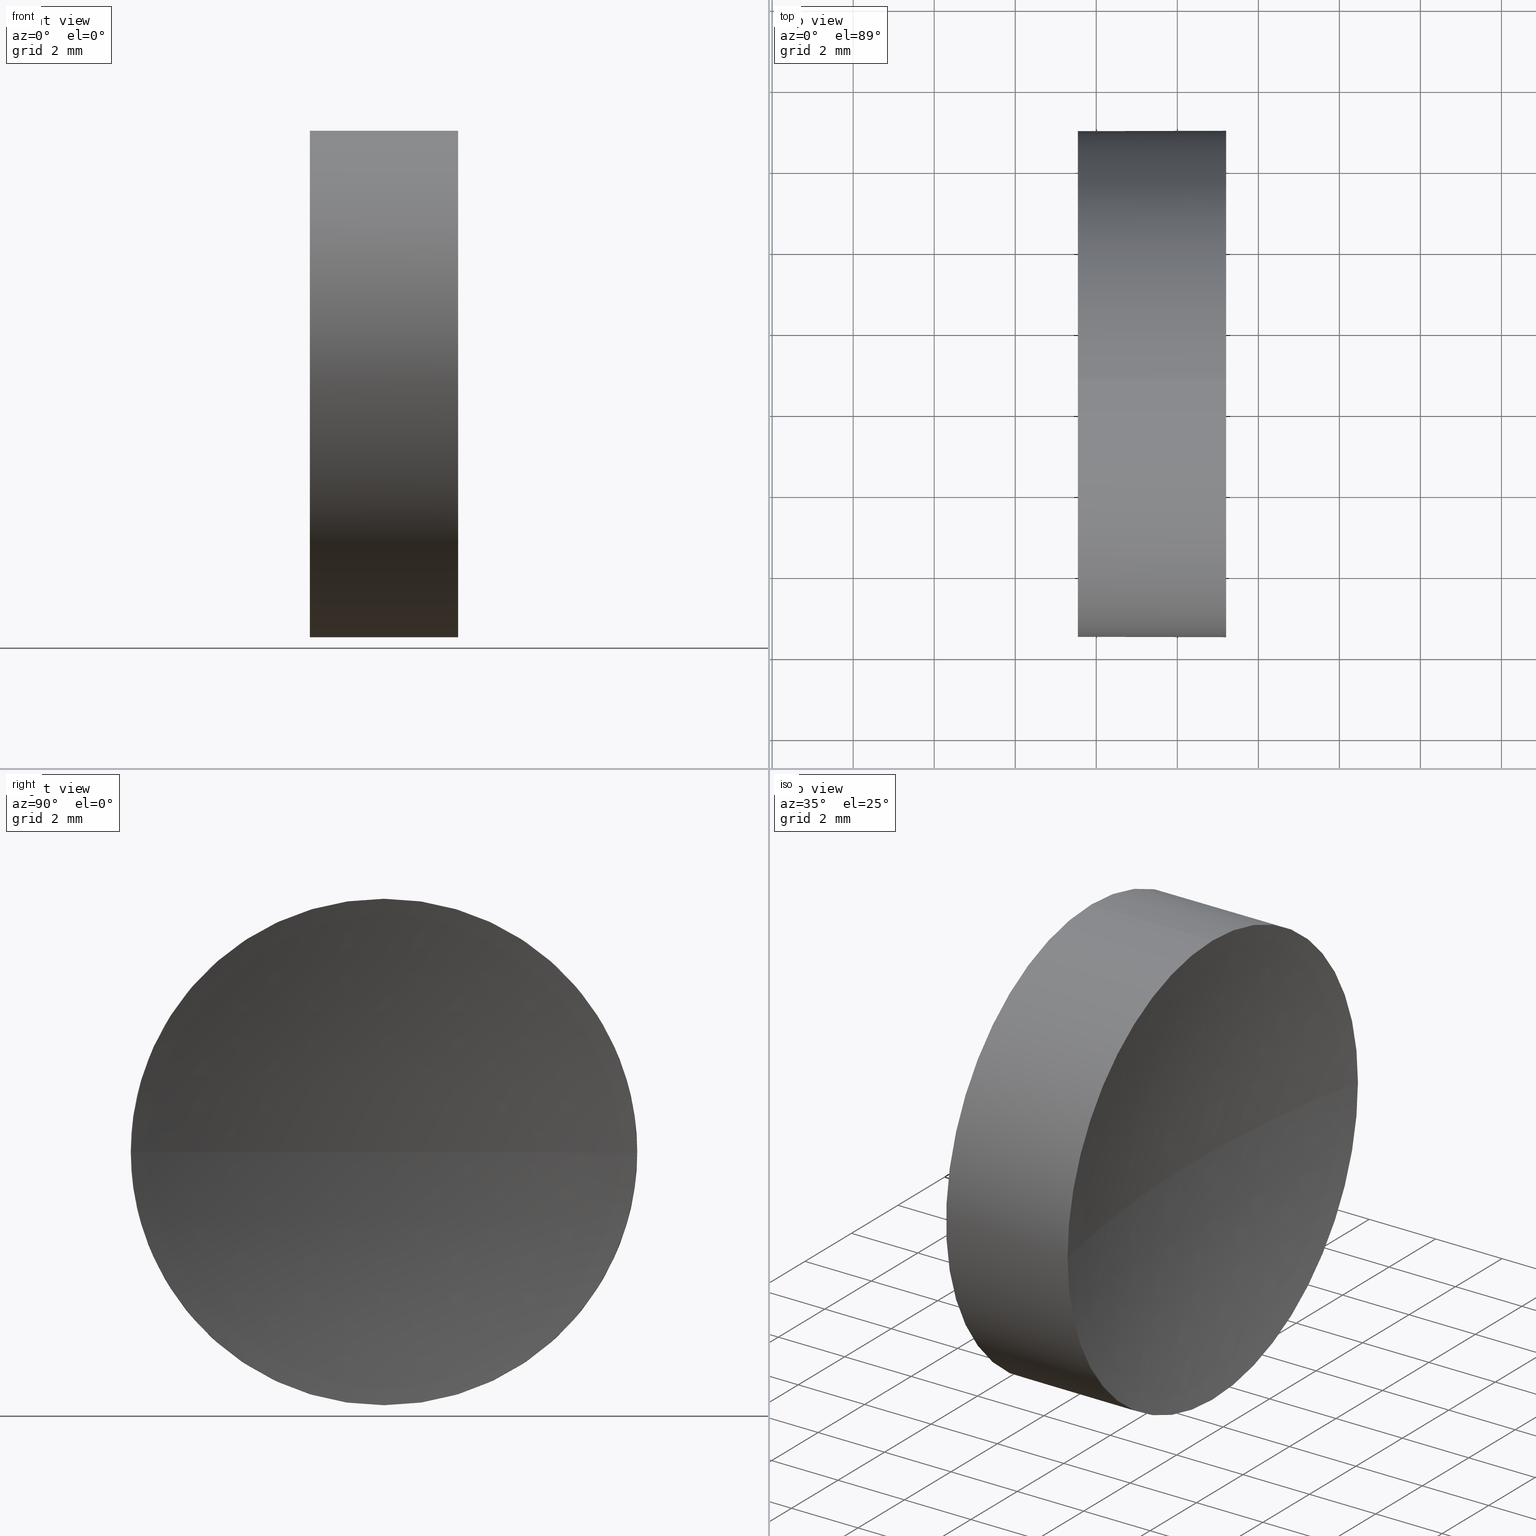
[diagram: canonical four-view strip — front | top / right | iso, engineering-drawing reading convention]
A machine part, canonical four-view strip (front | top / right | iso — engineering-drawing reading convention). The complete STEP part file that produces these views, byte-faithful:
ISO-10303-21;
HEADER;
FILE_DESCRIPTION (( 'STEP AP214' ),
    '1' );
FILE_NAME ('270002.STEP',
    '2019-07-22T01:41:52',
    ( '' ),
    ( '' ),
    'SwSTEP 2.0',
    'SolidWorks 2016',
    '' );
FILE_SCHEMA (( 'AUTOMOTIVE_DESIGN' ));
ENDSEC;

DATA;
#1 = CIRCLE ( 'NONE', #150, 30.00000000000000000 ) ;
#2 = AXIS2_PLACEMENT_3D ( 'NONE', #149, #123, #80 ) ;
#3 = APPLICATION_CONTEXT ( 'automotive_design' ) ;
#4 = EDGE_LOOP ( 'NONE', ( #72, #160, #152, #30 ) ) ;
#5 =( LENGTH_UNIT ( ) NAMED_UNIT ( * ) SI_UNIT ( .MILLI., .METRE. ) );
#6 = SHAPE_DEFINITION_REPRESENTATION ( #36, #90 ) ;
#7 = DIRECTION ( 'NONE',  ( 0.0000000000000000000, 0.0000000000000000000, 1.000000000000000000 ) ) ;
#8 = FILL_AREA_STYLE_COLOUR ( '', #119 ) ;
#9 = EDGE_LOOP ( 'NONE', ( #41, #116, #111, #100 ) ) ;
#10 = CARTESIAN_POINT ( 'NONE',  ( 61.20459128169575500, 34.68901056168621700, 0.0000000000000000000 ) ) ;
#11 = CARTESIAN_POINT ( 'NONE',  ( 54.49257150108255100, 34.68901056168621700, 0.0000000000000000000 ) ) ;
#12 = CARTESIAN_POINT ( 'NONE',  ( 57.54632776745975800, 34.68901056168621700, 6.249999999999998200 ) ) ;
#13 = DIRECTION ( 'NONE',  ( 0.0000000000000000000, 0.0000000000000000000, 1.000000000000000000 ) ) ;
#14 = SURFACE_SIDE_STYLE ('',( #117 ) ) ;
#15 = CARTESIAN_POINT ( 'NONE',  ( 57.54632776745975800, 34.68901056168621700, -6.249999999999998200 ) ) ;
#16 = AXIS2_PLACEMENT_3D ( 'NONE', #11, #135, #76 ) ;
#17 = VERTEX_POINT ( 'NONE', #120 ) ;
#18 = UNCERTAINTY_MEASURE_WITH_UNIT (LENGTH_MEASURE( 1.000000000000000100E-005 ), #5, 'distance_accuracy_value', 'NONE');
#19 = EDGE_CURVE ( 'NONE', #172, #46, #179, .T. ) ;
#20 = CIRCLE ( 'NONE', #141, 6.250000000000005300 ) ;
#21 =( LENGTH_UNIT ( ) NAMED_UNIT ( * ) SI_UNIT ( .MILLI., .METRE. ) );
#22 = DIRECTION ( 'NONE',  ( 1.000000000000000000, 0.0000000000000000000, 0.0000000000000000000 ) ) ;
#23 = VECTOR ( 'NONE', #29, 1000.000000000000000 ) ;
#24 = EDGE_CURVE ( 'NONE', #17, #136, #64, .T. ) ;
#25 = STYLED_ITEM ( 'NONE', ( #83 ), #99 ) ;
#26 = ORIENTED_EDGE ( 'NONE', *, *, #71, .T. ) ;
#27 =( NAMED_UNIT ( * ) PLANE_ANGLE_UNIT ( ) SI_UNIT ( $, .RADIAN. ) );
#28 = FACE_OUTER_BOUND ( 'NONE', #9, .T. ) ;
#29 = DIRECTION ( 'NONE',  ( -1.000000000000000000, -0.0000000000000000000, -0.0000000000000000000 ) ) ;
#30 = ORIENTED_EDGE ( 'NONE', *, *, #186, .F. ) ;
#31 = AXIS2_PLACEMENT_3D ( 'NONE', #40, #55, #42 ) ;
#32 = UNCERTAINTY_MEASURE_WITH_UNIT (LENGTH_MEASURE( 1.000000000000000100E-005 ), #21, 'distance_accuracy_value', 'NONE');
#33 = CLOSED_SHELL ( 'NONE', ( #124, #163, #47, #61, #153 ) ) ;
#34 = PRESENTATION_STYLE_ASSIGNMENT (( #157 ) ) ;
#35 = AXIS2_PLACEMENT_3D ( 'NONE', #159, #77, #173 ) ;
#36 = PRODUCT_DEFINITION_SHAPE ( 'NONE', 'NONE',  #97 ) ;
#37 = ORIENTED_EDGE ( 'NONE', *, *, #24, .T. ) ;
#38 = CIRCLE ( 'NONE', #109, 6.249999999999998200 ) ;
#39 = CARTESIAN_POINT ( 'NONE',  ( 61.20459128169575500, 34.68901056168621700, 6.250000000000004400 ) ) ;
#40 = CARTESIAN_POINT ( 'NONE',  ( 57.54632776745975800, 34.68901056168621700, 0.0000000000000000000 ) ) ;
#41 = ORIENTED_EDGE ( 'NONE', *, *, #19, .F. ) ;
#42 = DIRECTION ( 'NONE',  ( 0.0000000000000000000, 0.0000000000000000000, 1.000000000000000000 ) ) ;
#43 = CARTESIAN_POINT ( 'NONE',  ( 61.20459128169575500, 34.68901056168621700, 0.0000000000000000000 ) ) ;
#44 = CARTESIAN_POINT ( 'NONE',  ( 57.54632776745975800, 34.68901056168621700, 0.0000000000000000000 ) ) ;
#45 = CARTESIAN_POINT ( 'NONE',  ( 57.54632776745975800, 34.68901056168621700, 0.0000000000000000000 ) ) ;
#46 = VERTEX_POINT ( 'NONE', #89 ) ;
#47 = ADVANCED_FACE ( 'NONE', ( #28 ), #95, .F. ) ;
#48 = MECHANICAL_DESIGN_GEOMETRIC_PRESENTATION_REPRESENTATION (  '', ( #25 ), #130 ) ;
#49 = EDGE_LOOP ( 'NONE', ( #37, #166, #70, #81, #69 ) ) ;
#50 = CARTESIAN_POINT ( 'NONE',  ( 0.0000000000000000000, 0.0000000000000000000, 0.0000000000000000000 ) ) ;
#51 = SPHERICAL_SURFACE ( 'NONE', #2, 30.00000000000000000 ) ;
#52 = APPLICATION_CONTEXT ( 'automotive_design' ) ;
#53 = ORIENTED_EDGE ( 'NONE', *, *, #168, .T. ) ;
#54 = PRODUCT_DEFINITION_CONTEXT ( 'detailed design', #3, 'design' ) ;
#55 = DIRECTION ( 'NONE',  ( -1.000000000000000000, -0.0000000000000000000, -0.0000000000000000000 ) ) ;
#56 = FILL_AREA_STYLE_COLOUR ( '', #78 ) ;
#57 = DIRECTION ( 'NONE',  ( 0.0000000000000000000, 0.0000000000000000000, -1.000000000000000000 ) ) ;
#58 = AXIS2_PLACEMENT_3D ( 'NONE', #169, #102, #13 ) ;
#59 = ORIENTED_EDGE ( 'NONE', *, *, #139, .F. ) ;
#60 = FACE_OUTER_BOUND ( 'NONE', #146, .T. ) ;
#61 = ADVANCED_FACE ( 'NONE', ( #60 ), #85, .T. ) ;
#62 = CYLINDRICAL_SURFACE ( 'NONE', #35, 6.250000000000001800 ) ;
#63 =( NAMED_UNIT ( * ) PLANE_ANGLE_UNIT ( ) SI_UNIT ( $, .RADIAN. ) );
#64 = CIRCLE ( 'NONE', #58, 6.250000000000005300 ) ;
#65 = AXIS2_PLACEMENT_3D ( 'NONE', #73, #112, #127 ) ;
#66 = DIRECTION ( 'NONE',  ( -1.000000000000000000, -0.0000000000000000000, -0.0000000000000000000 ) ) ;
#67 = SURFACE_STYLE_USAGE ( .BOTH. , #14 ) ;
#68 = ORIENTED_EDGE ( 'NONE', *, *, #122, .T. ) ;
#69 = ORIENTED_EDGE ( 'NONE', *, *, #186, .T. ) ;
#70 = ORIENTED_EDGE ( 'NONE', *, *, #122, .F. ) ;
#71 = EDGE_CURVE ( 'NONE', #136, #172, #20, .T. ) ;
#72 = ORIENTED_EDGE ( 'NONE', *, *, #94, .F. ) ;
#73 = CARTESIAN_POINT ( 'NONE',  ( 61.20459128169575500, 34.68901056168621700, 0.0000000000000000000 ) ) ;
#74 = DIRECTION ( 'NONE',  ( 0.0000000000000000000, 1.000000000000000000, 1.224646799147352700E-016 ) ) ;
#75 = ORIENTED_EDGE ( 'NONE', *, *, #180, .F. ) ;
#76 = DIRECTION ( 'NONE',  ( 0.0000000000000000000, 0.0000000000000000000, 1.000000000000000000 ) ) ;
#77 = DIRECTION ( 'NONE',  ( -1.000000000000000000, -0.0000000000000000000, -0.0000000000000000000 ) ) ;
#78 = COLOUR_RGB ( '',1.000000000000000000, 1.000000000000000000, 1.000000000000000000 ) ;
#79 = CARTESIAN_POINT ( 'NONE',  ( 54.49257150108255100, 34.68901056168621700, -6.250000000000001800 ) ) ;
#80 = DIRECTION ( 'NONE',  ( 0.0000000000000000000, 1.000000000000000000, 0.0000000000000000000 ) ) ;
#81 = ORIENTED_EDGE ( 'NONE', *, *, #168, .F. ) ;
#82 = AXIS2_PLACEMENT_3D ( 'NONE', #43, #66, #158 ) ;
#83 = PRESENTATION_STYLE_ASSIGNMENT (( #67 ) ) ;
#84 = FACE_OUTER_BOUND ( 'NONE', #4, .T. ) ;
#85 = CYLINDRICAL_SURFACE ( 'NONE', #16, 6.250000000000001800 ) ;
#86 = UNCERTAINTY_MEASURE_WITH_UNIT (LENGTH_MEASURE( 1.000000000000000100E-005 ), #145, 'distance_accuracy_value', 'NONE');
#87 = SURFACE_SIDE_STYLE ('',( #174 ) ) ;
#88 = AXIS2_PLACEMENT_3D ( 'NONE', #44, #138, #57 ) ;
#89 = CARTESIAN_POINT ( 'NONE',  ( 60.54632776745950900, 34.68901056168621000, 0.0000000000000000000 ) ) ;
#90 = ADVANCED_BREP_SHAPE_REPRESENTATION ( '270002', ( #99, #177 ), #114 ) ;
#91 = DIRECTION ( 'NONE',  ( 0.0000000000000000000, 0.0000000000000000000, 1.000000000000000000 ) ) ;
#92 = PRODUCT ( '270002', '270002', '', ( #113 ) ) ;
#93 = DIRECTION ( 'NONE',  ( -1.000000000000000000, -0.0000000000000000000, -0.0000000000000000000 ) ) ;
#94 = EDGE_CURVE ( 'NONE', #172, #106, #131, .T. ) ;
#95 = SPHERICAL_SURFACE ( 'NONE', #170, 30.00000000000000000 ) ;
#96 = PRODUCT_RELATED_PRODUCT_CATEGORY ( 'part', '', ( #92 ) ) ;
#97 = PRODUCT_DEFINITION ( 'δ֪', '', #132, #54 ) ;
#98 = DIRECTION ( 'NONE',  ( 0.0000000000000000000, 0.0000000000000000000, 1.000000000000000000 ) ) ;
#99 = MANIFOLD_SOLID_BREP ( '��ת1', #33 ) ;
#100 = ORIENTED_EDGE ( 'NONE', *, *, #185, .T. ) ;
#101 = DIRECTION ( 'NONE',  ( 0.0000000000000000000, 1.224646799147353200E-016, -1.000000000000000000 ) ) ;
#102 = DIRECTION ( 'NONE',  ( -1.000000000000000000, -0.0000000000000000000, -0.0000000000000000000 ) ) ;
#103 = DIRECTION ( 'NONE',  ( -1.000000000000000000, -0.0000000000000000000, -0.0000000000000000000 ) ) ;
#104 = DIRECTION ( 'NONE',  ( 0.0000000000000000000, 0.0000000000000000000, 1.000000000000000000 ) ) ;
#105 = PRESENTATION_LAYER_ASSIGNMENT (  '', '', ( #140 ) ) ;
#106 = VERTEX_POINT ( 'NONE', #39 ) ;
#107 = ORIENTED_EDGE ( 'NONE', *, *, #180, .T. ) ;
#108 = CIRCLE ( 'NONE', #31, 6.249999999999998200 ) ;
#109 = AXIS2_PLACEMENT_3D ( 'NONE', #45, #93, #104 ) ;
#110 = FACE_OUTER_BOUND ( 'NONE', #182, .T. ) ;
#111 = ORIENTED_EDGE ( 'NONE', *, *, #24, .F. ) ;
#112 = DIRECTION ( 'NONE',  ( -1.000000000000000000, -0.0000000000000000000, -0.0000000000000000000 ) ) ;
#113 = PRODUCT_CONTEXT ( 'NONE', #52, 'mechanical' ) ;
#114 =( GEOMETRIC_REPRESENTATION_CONTEXT ( 3 ) GLOBAL_UNCERTAINTY_ASSIGNED_CONTEXT ( ( #32 ) ) GLOBAL_UNIT_ASSIGNED_CONTEXT ( ( #21, #63, #142 ) ) REPRESENTATION_CONTEXT ( 'NONE', 'WORKASPACE' ) );
#115 = CARTESIAN_POINT ( 'NONE',  ( 90.54632776745950200, 34.68901056168621000, 0.0000000000000000000 ) ) ;
#116 = ORIENTED_EDGE ( 'NONE', *, *, #71, .F. ) ;
#117 = SURFACE_STYLE_FILL_AREA ( #147 ) ;
#118 = DIRECTION ( 'NONE',  ( 0.0000000000000000000, 1.000000000000000000, 0.0000000000000000000 ) ) ;
#119 = COLOUR_RGB ( '',1.000000000000000000, 1.000000000000000000, 1.000000000000000000 ) ;
#120 = CARTESIAN_POINT ( 'NONE',  ( 61.20459128169575500, 40.93901056168621000, 0.0000000000000000000 ) ) ;
#121 = DIRECTION ( 'NONE',  ( -1.000000000000000000, -0.0000000000000000000, -0.0000000000000000000 ) ) ;
#122 = EDGE_CURVE ( 'NONE', #161, #178, #108, .T. ) ;
#123 = DIRECTION ( 'NONE',  ( 0.0000000000000000000, 0.0000000000000000000, -1.000000000000000000 ) ) ;
#124 = ADVANCED_FACE ( 'NONE', ( #155 ), #62, .T. ) ;
#125 = AXIS2_PLACEMENT_3D ( 'NONE', #133, #101, #74 ) ;
#126 =( NAMED_UNIT ( * ) SI_UNIT ( $, .STERADIAN. ) SOLID_ANGLE_UNIT ( ) );
#127 = DIRECTION ( 'NONE',  ( 0.0000000000000000000, 0.0000000000000000000, 1.000000000000000000 ) ) ;
#128 = LINE ( 'NONE', #79, #23 ) ;
#129 = DIRECTION ( 'NONE',  ( 1.000000000000000000, 0.0000000000000000000, 0.0000000000000000000 ) ) ;
#130 =( GEOMETRIC_REPRESENTATION_CONTEXT ( 3 ) GLOBAL_UNCERTAINTY_ASSIGNED_CONTEXT ( ( #86 ) ) GLOBAL_UNIT_ASSIGNED_CONTEXT ( ( #145, #27, #137 ) ) REPRESENTATION_CONTEXT ( 'NONE', 'WORKASPACE' ) );
#131 = CIRCLE ( 'NONE', #82, 6.250000000000005300 ) ;
#132 = PRODUCT_DEFINITION_FORMATION_WITH_SPECIFIED_SOURCE ( '�κ�', '', #92, .NOT_KNOWN. ) ;
#133 = CARTESIAN_POINT ( 'NONE',  ( 90.54632776745950200, 34.68901056168621000, 0.0000000000000000000 ) ) ;
#134 = CARTESIAN_POINT ( 'NONE',  ( 61.20459128169575500, 34.68901056168621700, -6.250000000000004400 ) ) ;
#135 = DIRECTION ( 'NONE',  ( -1.000000000000000000, -0.0000000000000000000, -0.0000000000000000000 ) ) ;
#136 = VERTEX_POINT ( 'NONE', #134 ) ;
#137 =( NAMED_UNIT ( * ) SI_UNIT ( $, .STERADIAN. ) SOLID_ANGLE_UNIT ( ) );
#138 = DIRECTION ( 'NONE',  ( 1.000000000000000000, 0.0000000000000000000, 0.0000000000000000000 ) ) ;
#139 = EDGE_CURVE ( 'NONE', #136, #178, #128, .T. ) ;
#140 = STYLED_ITEM ( 'NONE', ( #34 ), #90 ) ;
#141 = AXIS2_PLACEMENT_3D ( 'NONE', #10, #121, #91 ) ;
#142 =( NAMED_UNIT ( * ) SI_UNIT ( $, .STERADIAN. ) SOLID_ANGLE_UNIT ( ) );
#143 = APPLICATION_PROTOCOL_DEFINITION ( 'draft international standard', 'automotive_design', 1998, #52 ) ;
#144 = MECHANICAL_DESIGN_GEOMETRIC_PRESENTATION_REPRESENTATION (  '', ( #140 ), #156 ) ;
#145 =( LENGTH_UNIT ( ) NAMED_UNIT ( * ) SI_UNIT ( .MILLI., .METRE. ) );
#146 = EDGE_LOOP ( 'NONE', ( #59, #26, #183, #53, #75 ) ) ;
#147 = FILL_AREA_STYLE ('',( #56 ) ) ;
#148 = CARTESIAN_POINT ( 'NONE',  ( 90.54632776745950200, 34.68901056168621000, 0.0000000000000000000 ) ) ;
#149 = CARTESIAN_POINT ( 'NONE',  ( 90.54632776745950200, 34.68901056168621000, 0.0000000000000000000 ) ) ;
#150 = AXIS2_PLACEMENT_3D ( 'NONE', #148, #98, #129 ) ;
#151 = CARTESIAN_POINT ( 'NONE',  ( 54.49257150108255100, 34.68901056168621700, 6.250000000000001800 ) ) ;
#152 = ORIENTED_EDGE ( 'NONE', *, *, #185, .F. ) ;
#153 = ADVANCED_FACE ( 'NONE', ( #110 ), #175, .F. ) ;
#154 = LINE ( 'NONE', #151, #181 ) ;
#155 = FACE_OUTER_BOUND ( 'NONE', #49, .T. ) ;
#156 =( GEOMETRIC_REPRESENTATION_CONTEXT ( 3 ) GLOBAL_UNCERTAINTY_ASSIGNED_CONTEXT ( ( #18 ) ) GLOBAL_UNIT_ASSIGNED_CONTEXT ( ( #5, #165, #126 ) ) REPRESENTATION_CONTEXT ( 'NONE', 'WORKASPACE' ) );
#157 = SURFACE_STYLE_USAGE ( .BOTH. , #87 ) ;
#158 = DIRECTION ( 'NONE',  ( 0.0000000000000000000, 0.0000000000000000000, 1.000000000000000000 ) ) ;
#159 = CARTESIAN_POINT ( 'NONE',  ( 54.49257150108255100, 34.68901056168621700, 0.0000000000000000000 ) ) ;
#160 = ORIENTED_EDGE ( 'NONE', *, *, #19, .T. ) ;
#161 = VERTEX_POINT ( 'NONE', #12 ) ;
#162 = PRESENTATION_LAYER_ASSIGNMENT (  '', '', ( #25 ) ) ;
#163 = ADVANCED_FACE ( 'NONE', ( #84 ), #51, .F. ) ;
#164 = FILL_AREA_STYLE ('',( #8 ) ) ;
#165 =( NAMED_UNIT ( * ) PLANE_ANGLE_UNIT ( ) SI_UNIT ( $, .RADIAN. ) );
#166 = ORIENTED_EDGE ( 'NONE', *, *, #139, .T. ) ;
#167 = APPLICATION_PROTOCOL_DEFINITION ( 'draft international standard', 'automotive_design', 1998, #3 ) ;
#168 = EDGE_CURVE ( 'NONE', #106, #161, #154, .T. ) ;
#169 = CARTESIAN_POINT ( 'NONE',  ( 61.20459128169575500, 34.68901056168621700, 0.0000000000000000000 ) ) ;
#170 = AXIS2_PLACEMENT_3D ( 'NONE', #115, #171, #118 ) ;
#171 = DIRECTION ( 'NONE',  ( 0.0000000000000000000, 0.0000000000000000000, -1.000000000000000000 ) ) ;
#172 = VERTEX_POINT ( 'NONE', #176 ) ;
#173 = DIRECTION ( 'NONE',  ( 0.0000000000000000000, 0.0000000000000000000, 1.000000000000000000 ) ) ;
#174 = SURFACE_STYLE_FILL_AREA ( #164 ) ;
#175 = PLANE ( 'NONE',  #88 ) ;
#176 = CARTESIAN_POINT ( 'NONE',  ( 61.20459128169575500, 28.43901056168621700, -7.654042494670949700E-016 ) ) ;
#177 = AXIS2_PLACEMENT_3D ( 'NONE', #50, #7, #22 ) ;
#178 = VERTEX_POINT ( 'NONE', #15 ) ;
#179 = CIRCLE ( 'NONE', #125, 30.00000000000000700 ) ;
#180 = EDGE_CURVE ( 'NONE', #178, #161, #38, .T. ) ;
#181 = VECTOR ( 'NONE', #103, 1000.000000000000000 ) ;
#182 = EDGE_LOOP ( 'NONE', ( #68, #107 ) ) ;
#183 = ORIENTED_EDGE ( 'NONE', *, *, #94, .T. ) ;
#184 = CIRCLE ( 'NONE', #65, 6.250000000000005300 ) ;
#185 = EDGE_CURVE ( 'NONE', #17, #46, #1, .T. ) ;
#186 = EDGE_CURVE ( 'NONE', #106, #17, #184, .T. ) ;
ENDSEC;
END-ISO-10303-21;
